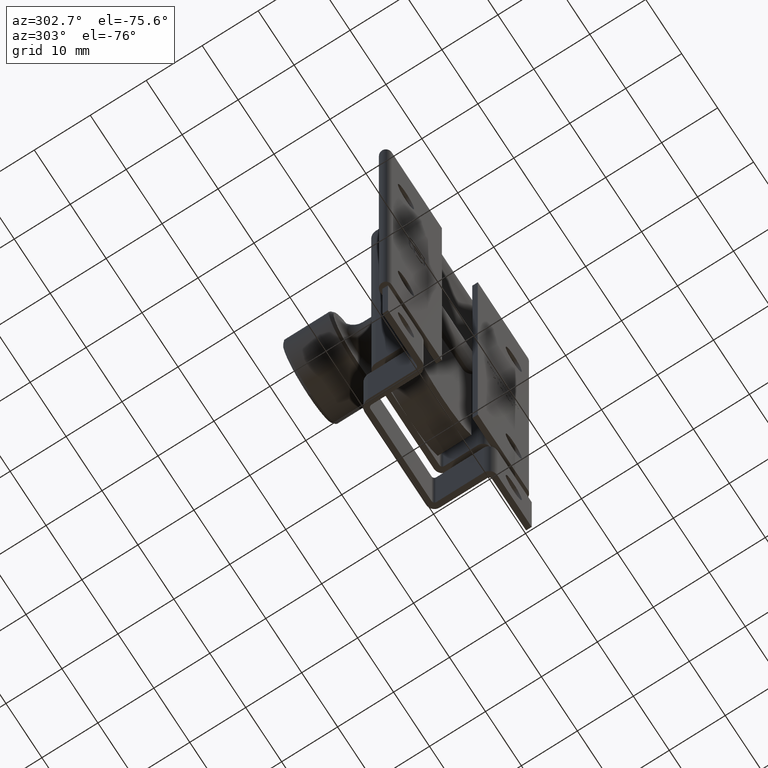
[diagram: clean part render]
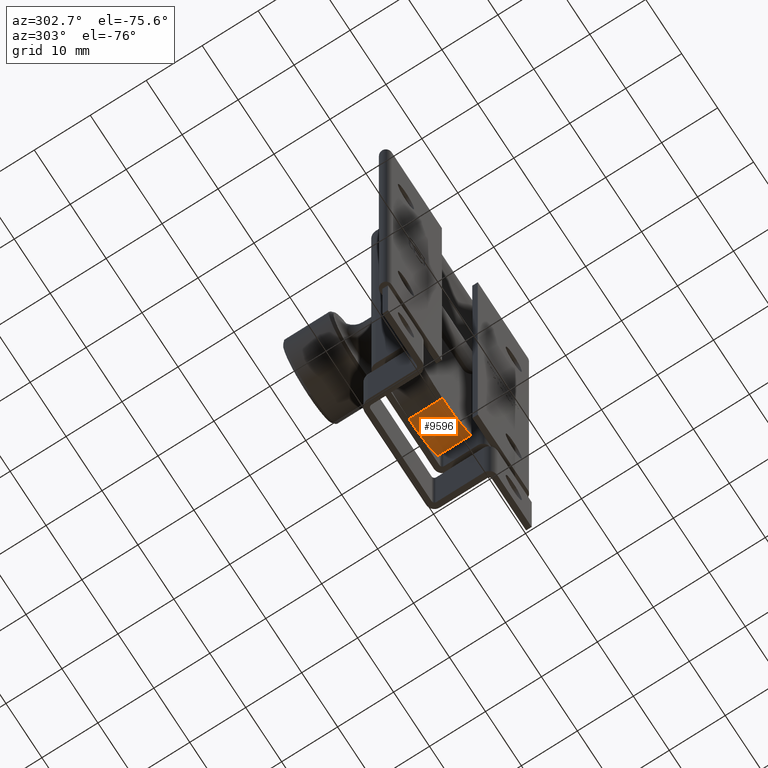
[diagram: same view with one face highlighted and labeled with its STEP entity id]
A machine part, auxiliary view. The second image highlights one B-rep face of the part: STEP entity #9596.
In plain terms, the highlighted cylindrical surface (partial cylindrical patch) has radius 10 mm, axis along (0, -1, 0).
Its self-contained STEP definition (entity closure, byte-faithful):
#38 = CIRCLE ( 'NONE', #8290, 10.00000000000000178 ) ;
#442 = ORIENTED_EDGE ( 'NONE', *, *, #980, .F. ) ;
#903 = VERTEX_POINT ( 'NONE', #8602 ) ;
#980 = EDGE_CURVE ( 'NONE', #12262, #5617, #15555, .T. ) ;
#1122 = DIRECTION ( 'NONE',  ( 0.000000000000000000, 0.000000000000000000, -1.000000000000000000 ) ) ;
#1527 = DIRECTION ( 'NONE',  ( -0.000000000000000000, -1.000000000000000000, 0.000000000000000000 ) ) ;
#2238 = DIRECTION ( 'NONE',  ( 0.000000000000000000, -1.000000000000000000, 0.000000000000000000 ) ) ;
#2530 = DIRECTION ( 'NONE',  ( 0.000000000000000000, -1.000000000000000000, 0.000000000000000000 ) ) ;
#4365 = LINE ( 'NONE', #9876, #9086 ) ;
#4452 = AXIS2_PLACEMENT_3D ( 'NONE', #7637, #11395, #15212 ) ;
#4564 = EDGE_LOOP ( 'NONE', ( #9284, #14859, #12514, #442 ) ) ;
#5207 = CARTESIAN_POINT ( 'NONE',  ( 8.000000000000005329, 6.000000000000000000, -35.99999999999999289 ) ) ;
#5344 = DIRECTION ( 'NONE',  ( 0.000000000000000000, 0.000000000000000000, 1.000000000000000000 ) ) ;
#5533 = CARTESIAN_POINT ( 'NONE',  ( 7.999999999999994671, 0.000000000000000000, -35.99999999999999289 ) ) ;
#5534 = VERTEX_POINT ( 'NONE', #5207 ) ;
#5617 = VERTEX_POINT ( 'NONE', #5533 ) ;
#7189 = EDGE_CURVE ( 'NONE', #5534, #5617, #15646, .T. ) ;
#7637 = CARTESIAN_POINT ( 'NONE',  ( -1.109746716321333412E-17, 0.000000000000000000, -30.00000000000000000 ) ) ;
#7974 = CARTESIAN_POINT ( 'NONE',  ( -1.109746716321333412E-17, 6.000000000000000000, -30.00000000000000000 ) ) ;
#8290 = AXIS2_PLACEMENT_3D ( 'NONE', #7974, #1527, #5344 ) ;
#8450 = CARTESIAN_POINT ( 'NONE',  ( -1.109746716321333412E-17, 6.000000000000000000, -30.00000000000000000 ) ) ;
#8602 = CARTESIAN_POINT ( 'NONE',  ( -1.109746716321333412E-17, 6.000000000000000000, -40.00000000000000000 ) ) ;
#9086 = VECTOR ( 'NONE', #2238, 1000.000000000000000 ) ;
#9119 = VECTOR ( 'NONE', #2530, 1000.000000000000000 ) ;
#9284 = ORIENTED_EDGE ( 'NONE', *, *, #10196, .F. ) ;
#9596 = ADVANCED_FACE ( 'NONE', ( #15031 ), #10088, .T. ) ;
#9780 = DIRECTION ( 'NONE',  ( 0.000000000000000000, -1.000000000000000000, 0.000000000000000000 ) ) ;
#9876 = CARTESIAN_POINT ( 'NONE',  ( -1.109746716321333412E-17, 6.000000000000000000, -40.00000000000000000 ) ) ;
#10088 = CYLINDRICAL_SURFACE ( 'NONE', #10306, 10.00000000000000178 ) ;
#10196 = EDGE_CURVE ( 'NONE', #903, #12262, #4365, .T. ) ;
#10306 = AXIS2_PLACEMENT_3D ( 'NONE', #8450, #9780, #1122 ) ;
#10987 = EDGE_CURVE ( 'NONE', #903, #5534, #38, .T. ) ;
#11180 = CARTESIAN_POINT ( 'NONE',  ( -1.109746716321333412E-17, 0.000000000000000000, -40.00000000000000000 ) ) ;
#11395 = DIRECTION ( 'NONE',  ( -0.000000000000000000, -1.000000000000000000, 0.000000000000000000 ) ) ;
#12262 = VERTEX_POINT ( 'NONE', #11180 ) ;
#12514 = ORIENTED_EDGE ( 'NONE', *, *, #7189, .T. ) ;
#14859 = ORIENTED_EDGE ( 'NONE', *, *, #10987, .T. ) ;
#15031 = FACE_OUTER_BOUND ( 'NONE', #4564, .T. ) ;
#15159 = CARTESIAN_POINT ( 'NONE',  ( 8.000000000000005329, 6.000000000000000000, -35.99999999999999289 ) ) ;
#15212 = DIRECTION ( 'NONE',  ( 0.000000000000000000, 0.000000000000000000, 1.000000000000000000 ) ) ;
#15555 = CIRCLE ( 'NONE', #4452, 10.00000000000000178 ) ;
#15646 = LINE ( 'NONE', #15159, #9119 ) ;